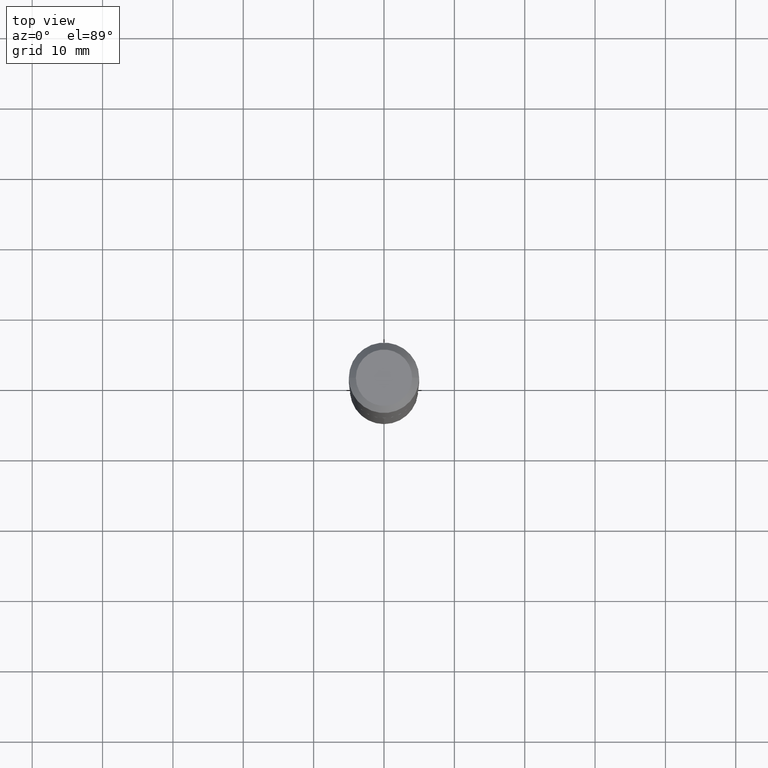
[diagram: clean part render]
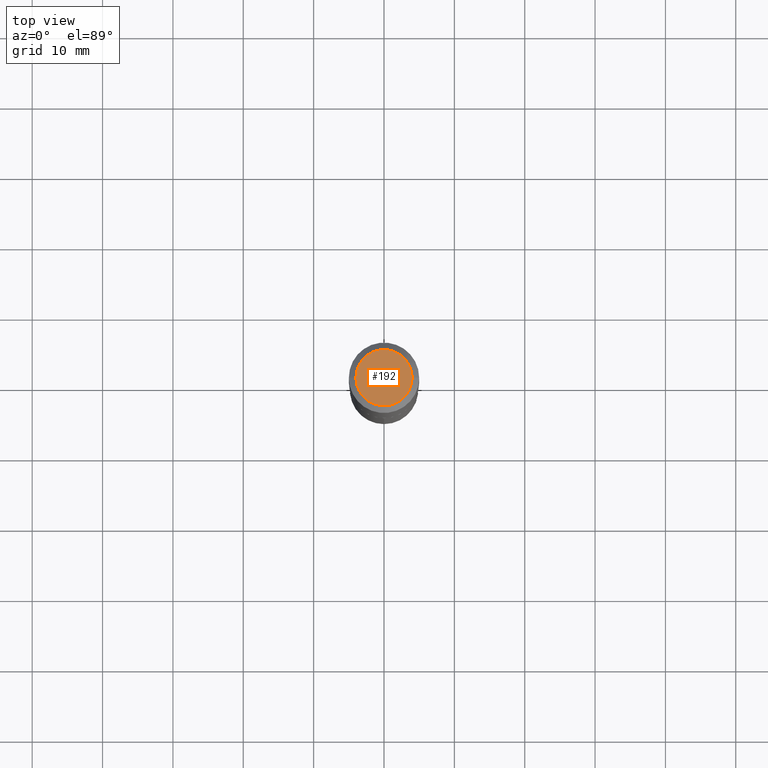
[diagram: same view with one face highlighted and labeled with its STEP entity id]
A machine part, top view. The second image highlights one B-rep face of the part: STEP entity #192.
In plain terms, the highlighted planar face has unit normal (0, -0, -1).
Its self-contained STEP definition (entity closure, byte-faithful):
#3 = CARTESIAN_POINT ( 'NONE',  ( -9.427742298522567634E-47, 1.346031739168368355E-32, 3.855188123715870730E-18 ) ) ;
#25 = VERTEX_POINT ( 'NONE', #293 ) ;
#36 = CARTESIAN_POINT ( 'NONE',  ( -4.713871149261283817E-47, 6.730158695841841775E-33, 1.927594061857935365E-18 ) ) ;
#40 = DIRECTION ( 'NONE',  ( 1.000000000000000000, -6.982962677686265922E-15, 4.876223630392693006E-29 ) ) ;
#42 = AXIS2_PLACEMENT_3D ( 'NONE', #36, #337, #417 ) ;
#57 = CIRCLE ( 'NONE', #235, 0.1574800000000000089 ) ;
#104 = DIRECTION ( 'NONE',  ( 1.000000000000000000, -6.982962677686265922E-15, 4.876223630392693006E-29 ) ) ;
#113 = CARTESIAN_POINT ( 'NONE',  ( -9.427742298522567634E-47, 1.346031739168368355E-32, 3.855188123715870730E-18 ) ) ;
#136 = ORIENTED_EDGE ( 'NONE', *, *, #188, .T. ) ;
#153 = ORIENTED_EDGE ( 'NONE', *, *, #201, .T. ) ;
#185 = FACE_OUTER_BOUND ( 'NONE', #249, .T. ) ;
#188 = EDGE_CURVE ( 'NONE', #25, #369, #57, .T. ) ;
#192 = ADVANCED_FACE ( 'NONE', ( #185 ), #266, .F. ) ;
#201 = EDGE_CURVE ( 'NONE', #369, #25, #455, .T. ) ;
#235 = AXIS2_PLACEMENT_3D ( 'NONE', #113, #378, #40 ) ;
#249 = EDGE_LOOP ( 'NONE', ( #136, #153 ) ) ;
#266 = PLANE ( 'NONE',  #42 ) ;
#293 = CARTESIAN_POINT ( 'NONE',  ( -0.1574800000000000089, 1.168406772637159618E-15, 3.855188123707939751E-18 ) ) ;
#337 = DIRECTION ( 'NONE',  ( 2.438088387897960049E-29, -3.491481338843145188E-15, -1.000000000000000000 ) ) ;
#352 = CARTESIAN_POINT ( 'NONE',  ( 0.1574800000000000089, -1.284169937930321189E-15, 3.855188123724205385E-18 ) ) ;
#356 = AXIS2_PLACEMENT_3D ( 'NONE', #3, #454, #104 ) ;
#369 = VERTEX_POINT ( 'NONE', #352 ) ;
#378 = DIRECTION ( 'NONE',  ( -2.445468806185136597E-29, 3.491481338843145583E-15, 1.000000000000000000 ) ) ;
#417 = DIRECTION ( 'NONE',  ( -1.000000000000000000, 6.982962677686265922E-15, -4.876176775795935793E-29 ) ) ;
#454 = DIRECTION ( 'NONE',  ( -2.445468806185136597E-29, 3.491481338843145583E-15, 1.000000000000000000 ) ) ;
#455 = CIRCLE ( 'NONE', #356, 0.1574800000000000089 ) ;